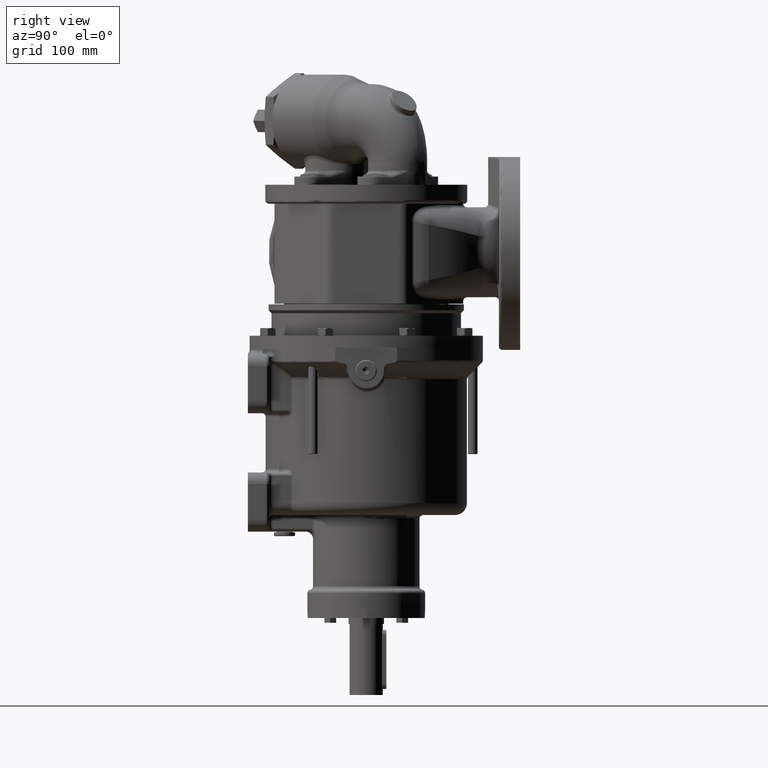
[diagram: clean part render]
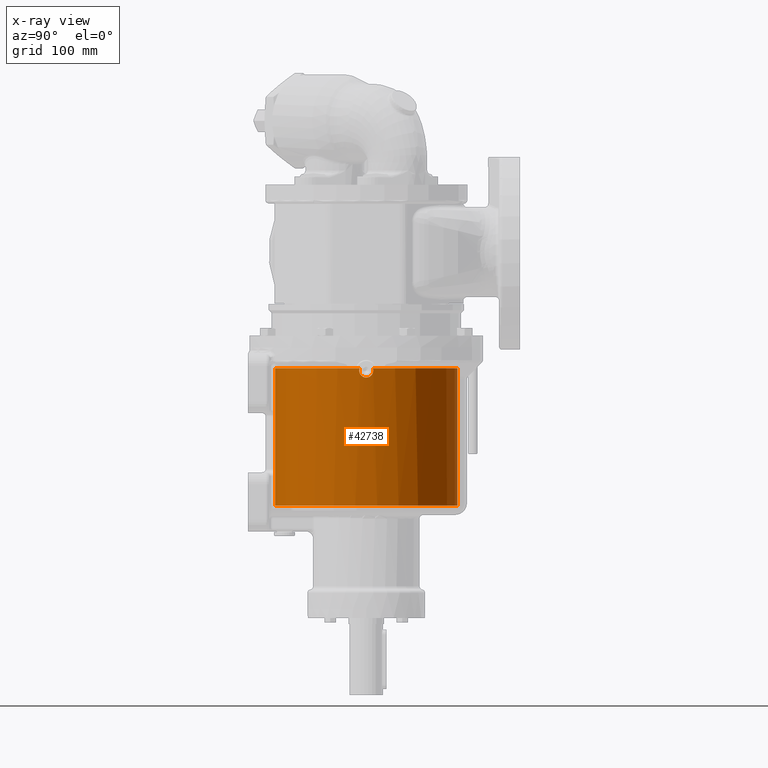
[diagram: x-ray — body ghosted, one internal face saturated and labeled with its STEP entity id]
A machine part, right view, then the same camera in x-ray: the body is ghosted and one INTERNAL B-rep face — a face not visible from any outside direction — is saturated and labeled: STEP entity #42738.
In plain terms, the highlighted cylindrical surface (partial cylindrical patch) has radius 77 mm, axis along (0, 0, 1).
Its self-contained STEP definition (entity closure, byte-faithful):
#10602=CARTESIAN_POINT('',(0.E0,0.E0,-1.335E2));
#10603=DIRECTION('',(0.E0,0.E0,-1.E0));
#10604=DIRECTION('',(0.E0,1.E0,0.E0));
#10605=AXIS2_PLACEMENT_3D('',#10602,#10603,#10604);
#10632=CARTESIAN_POINT('',(7.679967447848E1,-5.550675634551E0,-1.75E1));
#10633=CARTESIAN_POINT('',(7.679730482937E1,-5.583462324296E0,
-1.759099413995E1));
#10634=CARTESIAN_POINT('',(7.679285368457E1,-5.644468009616E0,
-1.777431823223E1));
#10635=CARTESIAN_POINT('',(7.678708043808E1,-5.722408580860E0,
-1.805360586508E1));
#10636=CARTESIAN_POINT('',(7.678227246862E1,-5.786511735566E0,
-1.833626839664E1));
#10637=CARTESIAN_POINT('',(7.677847378692E1,-5.836657904698E0,
-1.862170007430E1));
#10638=CARTESIAN_POINT('',(7.677572099002E1,-5.872728265792E0,
-1.890920389164E1));
#10639=CARTESIAN_POINT('',(7.677404007742E1,-5.894644397328E0,
-1.919810394378E1));
#10640=CARTESIAN_POINT('',(7.677344702210E1,-5.902357254722E0,
-1.948771616867E1));
#10641=CARTESIAN_POINT('',(7.677394743409E1,-5.895849919121E0,
-1.977735742322E1));
#10642=CARTESIAN_POINT('',(7.677553657470E1,-5.875136734767E0,
-2.006634418764E1));
#10643=CARTESIAN_POINT('',(7.677819937565E1,-5.840263606231E0,
-2.035399356260E1));
#10644=CARTESIAN_POINT('',(7.678191056659E1,-5.791308033667E0,
-2.063962457797E1));
#10645=CARTESIAN_POINT('',(7.678663486686E1,-5.728379484019E0,
-2.092255837114E1));
#10646=CARTESIAN_POINT('',(7.679232728201E1,-5.651619558371E0,
-2.120212005944E1));
#10647=CARTESIAN_POINT('',(7.679893346424E1,-5.561202490542E0,
-2.147763918856E1));
#10648=CARTESIAN_POINT('',(7.680639018367E1,-5.457335338166E0,
-2.174845170556E1));
#10649=CARTESIAN_POINT('',(7.681462587403E1,-5.340258321925E0,
-2.201390120857E1));
#10650=CARTESIAN_POINT('',(7.682356127271E1,-5.210245011159E0,
-2.227334073189E1));
#10651=CARTESIAN_POINT('',(7.683311016219E1,-5.067602166676E0,
-2.252613495509E1));
#10652=CARTESIAN_POINT('',(7.684318016754E1,-4.912669820441E0,
-2.277166177608E1));
#10653=CARTESIAN_POINT('',(7.685367367716E1,-4.745820463031E0,
-2.300931514121E1));
#10654=CARTESIAN_POINT('',(7.686448878186E1,-4.567458777115E0,
-2.323850661305E1));
#10655=CARTESIAN_POINT('',(7.687552032841E1,-4.378020242112E0,
-2.345866825003E1));
#10656=CARTESIAN_POINT('',(7.688666097104E1,-4.177970240482E0,
-2.366925432553E1));
#10657=CARTESIAN_POINT('',(7.689780228898E1,-3.967802341959E0,
-2.386974371833E1));
#10658=CARTESIAN_POINT('',(7.690883590420E1,-3.748036567168E0,
-2.405964180007E1));
#10659=CARTESIAN_POINT('',(7.691965458849E1,-3.519217654683E0,
-2.423848201978E1));
#10660=CARTESIAN_POINT('',(7.693015338071E1,-3.281912548185E0,
-2.440582773429E1));
#10661=CARTESIAN_POINT('',(7.694023062284E1,-3.036708766130E0,
-2.456127302367E1));
#10662=CARTESIAN_POINT('',(7.694978900025E1,-2.784211508101E0,
-2.470444411325E1));
#10663=CARTESIAN_POINT('',(7.695873646405E1,-2.525042062331E0,
-2.483499964995E1));
#10664=CARTESIAN_POINT('',(7.696698712890E1,-2.259835097577E0,
-2.495263147235E1));
#10665=CARTESIAN_POINT('',(7.697446205469E1,-1.989236908095E0,
-2.505706460614E1));
#10666=CARTESIAN_POINT('',(7.698108996139E1,-1.713903562666E0,-2.514805735E1));
#10667=CARTESIAN_POINT('',(7.698680785446E1,-1.434498338308E0,
-2.522540117946E1));
#10668=CARTESIAN_POINT('',(7.699156154765E1,-1.151692847970E0,
-2.528892036033E1));
#10669=CARTESIAN_POINT('',(7.699530612079E1,-8.661567127612E-1,
-2.533847181092E1));
#10670=CARTESIAN_POINT('',(7.699800626563E1,-5.785879015041E-1,
-2.537394460151E1));
#10671=CARTESIAN_POINT('',(7.699963657191E1,-2.895960484395E-1,
-2.539525979498E1));
#10672=CARTESIAN_POINT('',(7.7E1,-9.661918871171E-2,-2.54E1));
#10673=CARTESIAN_POINT('',(7.7E1,0.E0,-2.54E1));
#10675=CARTESIAN_POINT('',(0.E0,0.E0,-1.75E1));
#10676=DIRECTION('',(0.E0,0.E0,1.E0));
#10677=DIRECTION('',(0.E0,-1.E0,0.E0));
#10678=AXIS2_PLACEMENT_3D('',#10675,#10676,#10677);
#10680=CARTESIAN_POINT('',(0.E0,0.E0,-1.75E1));
#10681=DIRECTION('',(0.E0,0.E0,1.E0));
#10682=DIRECTION('',(9.973983698503E-1,7.208669655261E-2,0.E0));
#10683=AXIS2_PLACEMENT_3D('',#10680,#10681,#10682);
#10685=CARTESIAN_POINT('',(7.7E1,0.E0,-2.54E1));
#10686=CARTESIAN_POINT('',(7.7E1,9.661919041429E-2,-2.54E1));
#10687=CARTESIAN_POINT('',(7.699963657190E1,2.895960526749E-1,
-2.539525979480E1));
#10688=CARTESIAN_POINT('',(7.699800626560E1,5.785879054960E-1,
-2.537394460110E1));
#10689=CARTESIAN_POINT('',(7.699530612075E1,8.661567167438E-1,
-2.533847181035E1));
#10690=CARTESIAN_POINT('',(7.699156154757E1,1.151692853667E0,
-2.528892035921E1));
#10691=CARTESIAN_POINT('',(7.698680785436E1,1.434498343304E0,
-2.522540117819E1));
#10692=CARTESIAN_POINT('',(7.698108996128E1,1.713903567568E0,
-2.514805734853E1));
#10693=CARTESIAN_POINT('',(7.697446205456E1,1.989236913377E0,
-2.505706460423E1));
#10694=CARTESIAN_POINT('',(7.696698712877E1,2.259835101768E0,
-2.495263147062E1));
#10695=CARTESIAN_POINT('',(7.695873646388E1,2.525042067573E0,
-2.483499964747E1));
#10696=CARTESIAN_POINT('',(7.694978900011E1,2.784211512024E0,
-2.470444411114E1));
#10697=CARTESIAN_POINT('',(7.694023062266E1,3.036708770748E0,
-2.456127302091E1));
#10698=CARTESIAN_POINT('',(7.693015338055E1,3.281912552115E0,
-2.440582773164E1));
#10699=CARTESIAN_POINT('',(7.691965458832E1,3.519217658504E0,
-2.423848201696E1));
#10700=CARTESIAN_POINT('',(7.690883590401E1,3.748036571191E0,
-2.405964179675E1));
#10701=CARTESIAN_POINT('',(7.689780228883E1,3.967802344974E0,
-2.386974371561E1));
#10702=CARTESIAN_POINT('',(7.688666097082E1,4.177970244558E0,
-2.366925432144E1));
#10703=CARTESIAN_POINT('',(7.687552032827E1,4.378020244626E0,
-2.345866824724E1));
#10704=CARTESIAN_POINT('',(7.686448878165E1,4.567458780501E0,
-2.323850660893E1));
#10705=CARTESIAN_POINT('',(7.685367367701E1,4.745820465416E0,
-2.300931513796E1));
#10706=CARTESIAN_POINT('',(7.684318016738E1,4.912669822962E0,
-2.277166177232E1));
#10707=CARTESIAN_POINT('',(7.683311016203E1,5.067602169002E0,
-2.252613495115E1));
#10708=CARTESIAN_POINT('',(7.682356127259E1,5.210245012885E0,
-2.227334072869E1));
#10709=CARTESIAN_POINT('',(7.681462587387E1,5.340258324153E0,
-2.201390120381E1));
#10710=CARTESIAN_POINT('',(7.680639018359E1,5.457335339290E0,
-2.174845170285E1));
#10711=CARTESIAN_POINT('',(7.679893346411E1,5.561202492408E0,
-2.147763918332E1));
#10712=CARTESIAN_POINT('',(7.679232728194E1,5.651619559205E0,
-2.120212005661E1));
#10713=CARTESIAN_POINT('',(7.678663486677E1,5.728379485122E0,
-2.092255836677E1));
#10714=CARTESIAN_POINT('',(7.678191056654E1,5.791308034333E0,
-2.063962457445E1));
#10715=CARTESIAN_POINT('',(7.677819937561E1,5.840263606738E0,
-2.035399355929E1));
#10716=CARTESIAN_POINT('',(7.677553657467E1,5.875136735171E0,
-2.006634418320E1));
#10717=CARTESIAN_POINT('',(7.677394743408E1,5.895849919248E0,
-1.977735742094E1));
#10718=CARTESIAN_POINT('',(7.677344702211E1,5.902357254704E0,
-1.948771616320E1));
#10719=CARTESIAN_POINT('',(7.677404007743E1,5.894644397220E0,
-1.919810394188E1));
#10720=CARTESIAN_POINT('',(7.677572099005E1,5.872728265326E0,
-1.890920388685E1));
#10721=CARTESIAN_POINT('',(7.677847378695E1,5.836657904311E0,
-1.862170007192E1));
#10722=CARTESIAN_POINT('',(7.678227246867E1,5.786511734914E0,
-1.833626839326E1));
#10723=CARTESIAN_POINT('',(7.678708043815E1,5.722408579997E0,
-1.805360586181E1));
#10724=CARTESIAN_POINT('',(7.679285368458E1,5.644468009447E0,
-1.777431823180E1));
#10725=CARTESIAN_POINT('',(7.679730482937E1,5.583462324266E0,
-1.759099413987E1));
#10726=CARTESIAN_POINT('',(7.679967447848E1,5.550675634551E0,-1.75E1));
#10812=DIRECTION('',(0.E0,0.E0,-1.E0));
#10813=VECTOR('',#10812,1.16E2);
#10814=CARTESIAN_POINT('',(0.E0,7.7E1,-1.75E1));
#10815=LINE('',#10814,#10813);
#10816=DIRECTION('',(0.E0,0.E0,1.E0));
#10817=VECTOR('',#10816,1.16E2);
#10818=CARTESIAN_POINT('',(0.E0,-7.7E1,-1.335E2));
#10819=LINE('',#10818,#10817);
#21759=CARTESIAN_POINT('',(0.E0,7.7E1,-1.335E2));
#21760=CARTESIAN_POINT('',(0.E0,-7.7E1,-1.335E2));
#21761=VERTEX_POINT('',#21759);
#21762=VERTEX_POINT('',#21760);
#21775=CARTESIAN_POINT('',(0.E0,7.7E1,-1.75E1));
#21776=VERTEX_POINT('',#21775);
#21777=CARTESIAN_POINT('',(0.E0,-7.7E1,-1.75E1));
#21778=VERTEX_POINT('',#21777);
#21789=VERTEX_POINT('',#10632);
#21790=VERTEX_POINT('',#10673);
#21791=VERTEX_POINT('',#10726);
#42718=CARTESIAN_POINT('',(0.E0,0.E0,-2.37975E2));
#42719=DIRECTION('',(0.E0,0.E0,1.E0));
#42720=DIRECTION('',(0.E0,-1.E0,0.E0));
#42721=AXIS2_PLACEMENT_3D('',#42718,#42719,#42720);
#42722=CYLINDRICAL_SURFACE('',#42721,7.7E1);
#42724=ORIENTED_EDGE('',*,*,#42723,.F.);
#42726=ORIENTED_EDGE('',*,*,#42725,.F.);
#42728=ORIENTED_EDGE('',*,*,#42727,.F.);
#42729=ORIENTED_EDGE('',*,*,#42700,.F.);
#42731=ORIENTED_EDGE('',*,*,#42730,.F.);
#42733=ORIENTED_EDGE('',*,*,#42732,.F.);
#42735=ORIENTED_EDGE('',*,*,#42734,.F.);
#42736=EDGE_LOOP('',(#42724,#42726,#42728,#42729,#42731,#42733,#42735));
#42737=FACE_OUTER_BOUND('',#42736,.F.);
#42738=ADVANCED_FACE('',(#42737),#42722,.F.);
#10606=CIRCLE('',#10605,7.7E1);
#10674=B_SPLINE_CURVE_WITH_KNOTS('',3,(#10632,#10633,#10634,#10635,#10636,
#10637,#10638,#10639,#10640,#10641,#10642,#10643,#10644,#10645,#10646,#10647,
#10648,#10649,#10650,#10651,#10652,#10653,#10654,#10655,#10656,#10657,#10658,
#10659,#10660,#10661,#10662,#10663,#10664,#10665,#10666,#10667,#10668,#10669,
#10670,#10671,#10672,#10673),.UNSPECIFIED.,.F.,.F.,(4,1,1,1,1,1,1,1,1,1,1,1,1,1,
1,1,1,1,1,1,1,1,1,1,1,1,1,1,1,1,1,1,1,1,1,1,1,1,1,4),(0.E0,2.564102564103E-2,
5.128205128205E-2,7.692307692308E-2,1.025641025641E-1,1.282051282051E-1,
1.538461538462E-1,1.794871794872E-1,2.051282051282E-1,2.307692307692E-1,
2.564102564103E-1,2.820512820513E-1,3.076923076923E-1,3.333333333333E-1,
3.589743589744E-1,3.846153846154E-1,4.102564102564E-1,4.358974358974E-1,
4.615384615385E-1,4.871794871795E-1,5.128205128205E-1,5.384615384615E-1,
5.641025641026E-1,5.897435897436E-1,6.153846153846E-1,6.410256410256E-1,
6.666666666667E-1,6.923076923077E-1,7.179487179487E-1,7.435897435897E-1,
7.692307692308E-1,7.948717948718E-1,8.205128205128E-1,8.461538461538E-1,
8.717948717949E-1,8.974358974359E-1,9.230769230769E-1,9.487179487179E-1,
9.743589743590E-1,1.E0),.UNSPECIFIED.);
#10679=CIRCLE('',#10678,7.7E1);
#10684=CIRCLE('',#10683,7.7E1);
#10727=B_SPLINE_CURVE_WITH_KNOTS('',3,(#10685,#10686,#10687,#10688,#10689,
#10690,#10691,#10692,#10693,#10694,#10695,#10696,#10697,#10698,#10699,#10700,
#10701,#10702,#10703,#10704,#10705,#10706,#10707,#10708,#10709,#10710,#10711,
#10712,#10713,#10714,#10715,#10716,#10717,#10718,#10719,#10720,#10721,#10722,
#10723,#10724,#10725,#10726),.UNSPECIFIED.,.F.,.F.,(4,1,1,1,1,1,1,1,1,1,1,1,1,1,
1,1,1,1,1,1,1,1,1,1,1,1,1,1,1,1,1,1,1,1,1,1,1,1,1,4),(0.E0,2.564102564103E-2,
5.128205128205E-2,7.692307692308E-2,1.025641025641E-1,1.282051282051E-1,
1.538461538462E-1,1.794871794872E-1,2.051282051282E-1,2.307692307692E-1,
2.564102564103E-1,2.820512820513E-1,3.076923076923E-1,3.333333333333E-1,
3.589743589744E-1,3.846153846154E-1,4.102564102564E-1,4.358974358974E-1,
4.615384615385E-1,4.871794871795E-1,5.128205128205E-1,5.384615384615E-1,
5.641025641026E-1,5.897435897436E-1,6.153846153846E-1,6.410256410256E-1,
6.666666666667E-1,6.923076923077E-1,7.179487179487E-1,7.435897435897E-1,
7.692307692308E-1,7.948717948718E-1,8.205128205128E-1,8.461538461538E-1,
8.717948717949E-1,8.974358974359E-1,9.230769230769E-1,9.487179487179E-1,
9.743589743590E-1,1.E0),.UNSPECIFIED.);
#42700=EDGE_CURVE('',#21761,#21762,#10606,.T.);
#42723=EDGE_CURVE('',#21789,#21790,#10674,.T.);
#42725=EDGE_CURVE('',#21778,#21789,#10679,.T.);
#42727=EDGE_CURVE('',#21762,#21778,#10819,.T.);
#42730=EDGE_CURVE('',#21776,#21761,#10815,.T.);
#42732=EDGE_CURVE('',#21791,#21776,#10684,.T.);
#42734=EDGE_CURVE('',#21790,#21791,#10727,.T.);